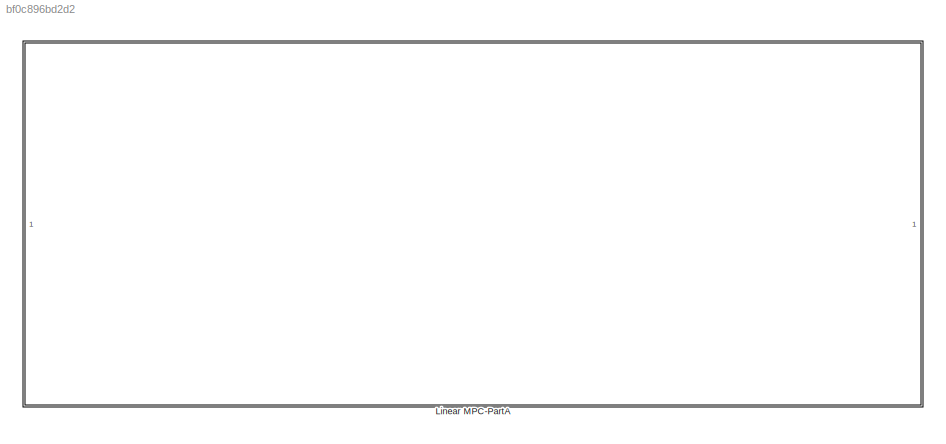
MODEL slx_bf0c896bd2d2
KIND model
CONFIG AbsTol = auto
CONFIG EnableMultiTasking = off
CONFIG FixedStep = auto
CONFIG MaxStep = auto
CONFIG MinStep = auto
CONFIG RelTol = 1e-3
CONFIG SampleTimeConstraint = Unconstrained
CONFIG SolverName = VariableStepAuto
CONFIG StartTime = 0.0
CONFIG StopTime = 30
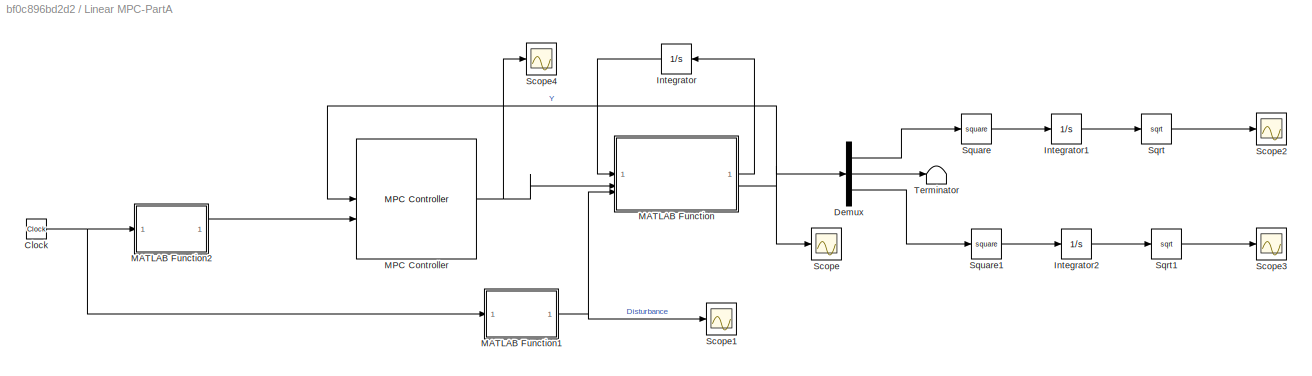
BLOCK [SubSystem] Linear MPC-PartA
BLOCK [Clock] Linear MPC-PartA/Clock
BLOCK [Demux] Linear MPC-PartA/Demux
  Outputs = 3
BLOCK [Integrator] Linear MPC-PartA/Integrator
  InitialCondition = [0;0;0;0]
  NameLocation = top
BLOCK [Integrator] Linear MPC-PartA/Integrator1
BLOCK [Integrator] Linear MPC-PartA/Integrator2
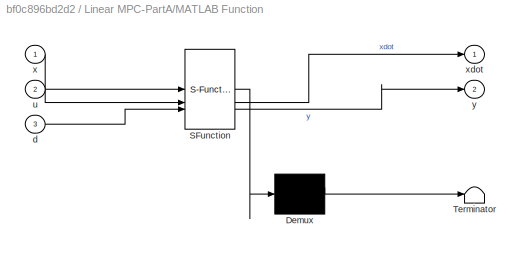
BLOCK [SubSystem] Linear MPC-PartA/MATLAB Function
  ErrorFcn = Stateflow.Translate.translate
  PermitHierarchicalResolution = ExplicitOnly
  SFBlockType = MATLAB Function
  TreatAsAtomicUnit = on
BLOCK [Demux] Linear MPC-PartA/MATLAB Function/ Demux 
  Outputs = 1
BLOCK [S-Function] Linear MPC-PartA/MATLAB Function/ SFunction 
  EnableBusSupport = on
  FunctionName = sf_sfun
  PortCounts = [3 3]
  SFcnIsStateOwnerBlock = off
  SFunctionDeploymentMode = off
  Tag = Stateflow S-Function 2
BLOCK [Terminator] Linear MPC-PartA/MATLAB Function/ Terminator 
BLOCK [Inport] Linear MPC-PartA/MATLAB Function/d
  Port = 3
BLOCK [Inport] Linear MPC-PartA/MATLAB Function/u
  Port = 2
BLOCK [Inport] Linear MPC-PartA/MATLAB Function/x
BLOCK [Outport] Linear MPC-PartA/MATLAB Function/xdot
BLOCK [Outport] Linear MPC-PartA/MATLAB Function/y
  Port = 2
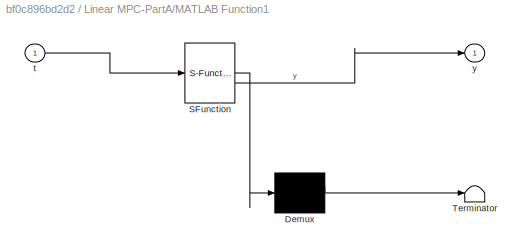
BLOCK [SubSystem] Linear MPC-PartA/MATLAB Function1
  ErrorFcn = Stateflow.Translate.translate
  PermitHierarchicalResolution = ExplicitOnly
  SFBlockType = MATLAB Function
  TreatAsAtomicUnit = on
BLOCK [Demux] Linear MPC-PartA/MATLAB Function1/ Demux 
  Outputs = 1
BLOCK [S-Function] Linear MPC-PartA/MATLAB Function1/ SFunction 
  EnableBusSupport = on
  FunctionName = sf_sfun
  PortCounts = [1 2]
  SFcnIsStateOwnerBlock = off
  SFunctionDeploymentMode = off
  Tag = Stateflow S-Function 1
BLOCK [Terminator] Linear MPC-PartA/MATLAB Function1/ Terminator 
BLOCK [Inport] Linear MPC-PartA/MATLAB Function1/t
BLOCK [Outport] Linear MPC-PartA/MATLAB Function1/y
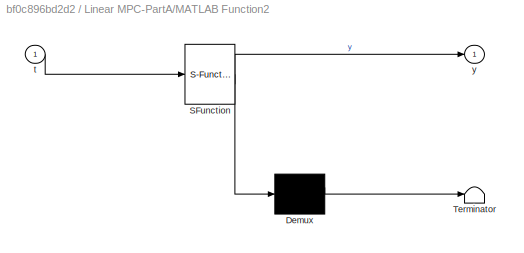
BLOCK [SubSystem] Linear MPC-PartA/MATLAB Function2
  ErrorFcn = Stateflow.Translate.translate
  PermitHierarchicalResolution = ExplicitOnly
  SFBlockType = MATLAB Function
  TreatAsAtomicUnit = on
BLOCK [Demux] Linear MPC-PartA/MATLAB Function2/ Demux 
  Outputs = 1
BLOCK [S-Function] Linear MPC-PartA/MATLAB Function2/ SFunction 
  EnableBusSupport = on
  FunctionName = sf_sfun
  PortCounts = [1 2]
  SFcnIsStateOwnerBlock = off
  SFunctionDeploymentMode = off
  Tag = Stateflow S-Function 3
BLOCK [Terminator] Linear MPC-PartA/MATLAB Function2/ Terminator 
BLOCK [Inport] Linear MPC-PartA/MATLAB Function2/t
BLOCK [Outport] Linear MPC-PartA/MATLAB Function2/y
BLOCK [Reference] Linear MPC-PartA/MPC Controller  REF=mpclib/MPC Controller  (lib defined in mdl_ae329e0e0455)
  SCDEnableBlockLinearizationSpecification = on
  SourceBlock = mpclib/MPC Controller
  SourceType = MPC
BLOCK [Scope] Linear MPC-PartA/Scope
  Floating = off
  NumInputPorts = 1
  ScopeSpecificationString = Simulink.scopes.TimeScopeBlockCfg('CurrentConfiguration', extmgr.ConfigurationSet(extmgr.Configuration('Core','General UI',true),extmgr.Configuration('Core','Source UI',true),extmgr.Configuration('Sources','WiredSimulink',true),extmgr.Configuration('Visuals','Time Domain',true,'SerializedDisplays',{struct('MinYLimReal','-662788840.96325','MaxYLimReal','560076393.40147','YLabelReal','','MinYLimMag'...<+1538ch>
BLOCK [Scope] Linear MPC-PartA/Scope1
  Floating = off
  NumInputPorts = 1
  ScopeSpecificationString = Simulink.scopes.TimeScopeBlockCfg('CurrentConfiguration', extmgr.ConfigurationSet(extmgr.Configuration('Core','General UI',true),extmgr.Configuration('Core','Source UI',true),extmgr.Configuration('Sources','WiredSimulink',true,'DataLoggingVariableName','ScopeData1'),extmgr.Configuration('Visuals','Time Domain',true,'SerializedDisplays',{struct('MinYLimReal','-0.125','MaxYLimReal','1.125','YLabelRe...<+1499ch>
BLOCK [Scope] Linear MPC-PartA/Scope2
  Floating = off
  NumInputPorts = 1
  ScopeSpecificationString = Simulink.scopes.TimeScopeBlockCfg('CurrentConfiguration', extmgr.ConfigurationSet(extmgr.Configuration('Core','General UI',true),extmgr.Configuration('Core','Source UI',true),extmgr.Configuration('Sources','WiredSimulink',true,'DataLoggingVariableName','ScopeData1'),extmgr.Configuration('Visuals','Time Domain',true,'SerializedDisplays',{struct('MinYLimReal','-39088128.1588','MaxYLimReal','35179315...<+1508ch>
BLOCK [Scope] Linear MPC-PartA/Scope3
  Floating = off
  NumInputPorts = 1
  ScopeSpecificationString = Simulink.scopes.TimeScopeBlockCfg('CurrentConfiguration', extmgr.ConfigurationSet(extmgr.Configuration('Core','General UI',true),extmgr.Configuration('Core','Source UI',true),extmgr.Configuration('Sources','WiredSimulink',true,'DataLoggingVariableName','ScopeData2'),extmgr.Configuration('Visuals','Time Domain',true,'SerializedDisplays',{struct('MinYLimReal','-23756702.98457','MaxYLimReal','2138103...<+1511ch>
BLOCK [Scope] Linear MPC-PartA/Scope4
  Floating = off
  NumInputPorts = 1
  ScopeSpecificationString = Simulink.scopes.TimeScopeBlockCfg('CurrentConfiguration', extmgr.ConfigurationSet(extmgr.Configuration('Core','General UI',true),extmgr.Configuration('Core','Source UI',true),extmgr.Configuration('Sources','WiredSimulink',true,'DataLoggingVariableName','ScopeData3'),extmgr.Configuration('Visuals','Time Domain',true,'SerializedDisplays',{struct('MinYLimReal','-2680360639.47238','MaxYLimReal','-2680...<+1609ch>
BLOCK [Sqrt] Linear MPC-PartA/Sqrt
BLOCK [Sqrt] Linear MPC-PartA/Sqrt1
BLOCK [Math] Linear MPC-PartA/Square
  Operator = square
BLOCK [Math] Linear MPC-PartA/Square1
  Operator = square
BLOCK [Terminator] Linear MPC-PartA/Terminator
NET Linear MPC-PartA/Clock:1 -> Linear MPC-PartA/MATLAB Function1:1, Linear MPC-PartA/MATLAB Function2:1
LINE Linear MPC-PartA/Demux:1 -> Linear MPC-PartA/Square:1
LINE Linear MPC-PartA/Demux:2 -> Linear MPC-PartA/Terminator:1
LINE Linear MPC-PartA/Demux:3 -> Linear MPC-PartA/Square1:1
LINE Linear MPC-PartA/Integrator1:1 -> Linear MPC-PartA/Sqrt:1
LINE Linear MPC-PartA/Integrator2:1 -> Linear MPC-PartA/Sqrt1:1
LINE Linear MPC-PartA/Integrator:1 -> Linear MPC-PartA/MATLAB Function:1
NET Linear MPC-PartA/MATLAB Function1:1 -> Linear MPC-PartA/MATLAB Function:3, Linear MPC-PartA/Scope1:1
LINE Linear MPC-PartA/MATLAB Function2:1 -> Linear MPC-PartA/MPC Controller:2
LINE Linear MPC-PartA/MATLAB Function:1 -> Linear MPC-PartA/Integrator:1
NET Linear MPC-PartA/MATLAB Function:2 -> Linear MPC-PartA/Demux:1, Linear MPC-PartA/MPC Controller:1, Linear MPC-PartA/Scope:1
NET Linear MPC-PartA/MPC Controller:1 -> Linear MPC-PartA/MATLAB Function:2, Linear MPC-PartA/Scope4:1
LINE Linear MPC-PartA/Sqrt1:1 -> Linear MPC-PartA/Scope3:1
LINE Linear MPC-PartA/Sqrt:1 -> Linear MPC-PartA/Scope2:1
LINE Linear MPC-PartA/Square1:1 -> Linear MPC-PartA/Integrator2:1
LINE Linear MPC-PartA/Square:1 -> Linear MPC-PartA/Integrator1:1
note: NET lines group one-source signal fan-out (src -> all destinations, sorted); 1:1 wires keep LINE
CHART Linear MPC-PartA/MATLAB Function1 states=1 transitions=1
  STATE_LABEL 'eML_blk_kernel()'
  STATE_LABEL 'SCRIPT:\nfunction y = Disturbance(t)\n\nif t>=4 & t<5 \n    y = t-4;\nelseif t>=5 & t<7\n    y = 1;\nelseif t>=7 & t<8\n    y = -t+8;\nelse \n    y = 0;\nend\n\n\n\n'
CHART Linear MPC-PartA/MATLAB Function states=1 transitions=1
  STATE_LABEL 'eML_blk_kernel()'
  STATE_LABEL 'SCRIPT:\nfunction [xdot,y]= SystemDynamics(x,u,d)\n\n% Parameter Definition\nMs = 2500;\nMu = 320;\nks = 80000;\nku = 500000;\ncs = 350;\ncu = 15020;\n\nA = [0 1 0 0;\n     0 -cs/Ms -ks/Ms cs/Ms;\n     0 1 0 -1;\n     -ku/Mu cs/Mu (ks+ku)/Mu -(cs+cu)/Mu];\n     \nB = [0; 1/Ms; 0; -1/Mu];  % Input matrix\n\nC = [1 0 0 0; 0 1 0 0; 0 0 1 0];\n\nAd = [0.9241    0.0945   -0.0672    0.0013;\n   -2.0392    0.8450   -0.6570  ...<+262ch>'
CHART Linear MPC-PartA/MATLAB Function2 states=1 transitions=1
  STATE_LABEL 'eML_blk_kernel()'
  STATE_LABEL 'SCRIPT:\nfunction y = fcn(t)\n\ny = [0;0;0];\n'
CHART  states=0 transitions=0
CHART  states=0 transitions=0
CHART  states=0 transitions=0
